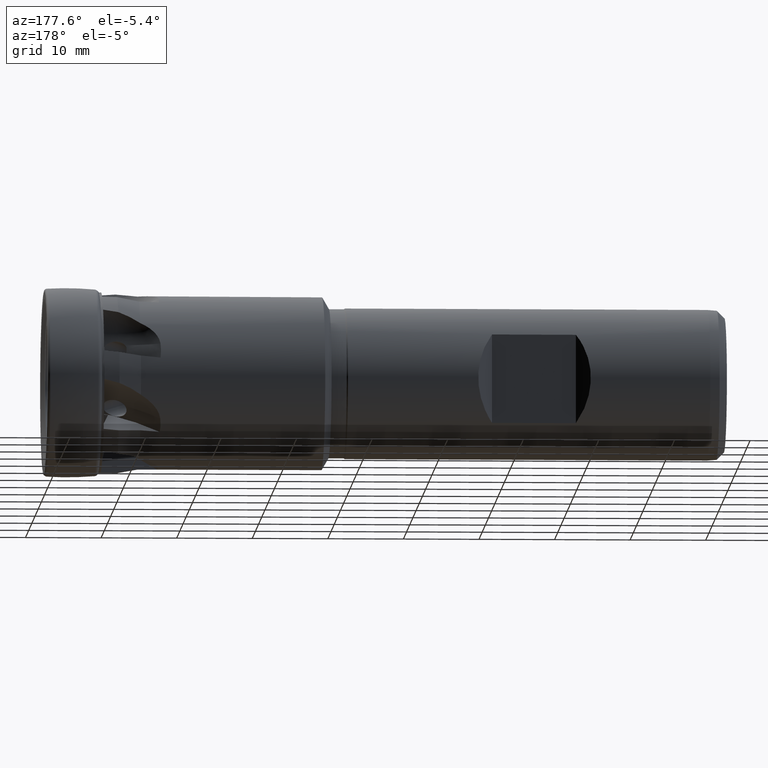
[diagram: clean part render]
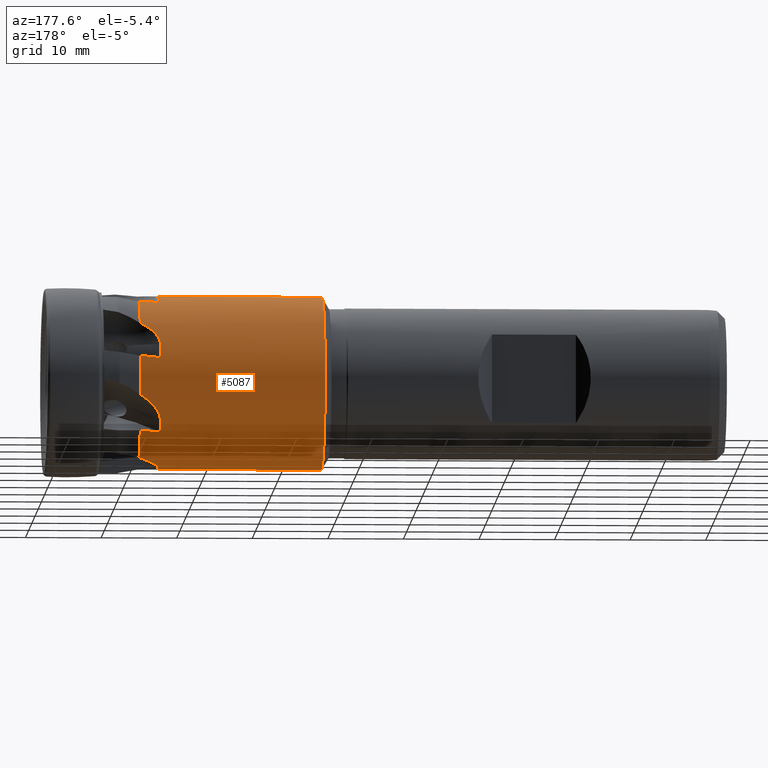
[diagram: same view with one face highlighted and labeled with its STEP entity id]
A machine part, auxiliary view. The second image highlights one B-rep face of the part: STEP entity #5087.
In plain terms, the highlighted cylindrical surface (partial cylindrical patch) has radius 11.47 mm, axis along (1, -0, -0).
Its self-contained STEP definition (entity closure, byte-faithful):
#51 = B_SPLINE_CURVE_WITH_KNOTS ( 'NONE', 3,
 ( #5363, #5362, #5366, #5367 ),
 .UNSPECIFIED., .F., .F.,
 ( 4, 4 ),
 ( 1.525299452287147300E-016, 0.002014762378807072800 ),
 .UNSPECIFIED. ) ;
#61 = B_SPLINE_CURVE_WITH_KNOTS ( 'NONE', 3,
 ( #1699, #1698, #1705, #1706, #1707, #1708, #1709, #1710, #1711, #1712, #1713, #1714 ),
 .UNSPECIFIED., .F., .F.,
 ( 4, 2, 2, 2, 2, 4 ),
 ( 0.0009260210405258540100, 0.001466963678715917600, 0.002007906316905981300, 0.003089791593286110900, 0.004171676869666241000, 0.005253562146046371000 ),
 .UNSPECIFIED. ) ;
#78 = B_SPLINE_CURVE_WITH_KNOTS ( 'NONE', 3,
 ( #5522, #5523, #5558, #5559, #5560, #5561, #5562, #5563, #5564, #5565, #5566, #5567 ),
 .UNSPECIFIED., .F., .F.,
 ( 4, 2, 2, 2, 2, 4 ),
 ( 7.179796305812222700E-005, 0.0006111386188026559300, 0.001150479274547189500, 0.002229160586036259000, 0.003307841897525328100, 0.004386523209014397600 ),
 .UNSPECIFIED. ) ;
#87 = B_SPLINE_CURVE_WITH_KNOTS ( 'NONE', 3,
 ( #629, #607, #636, #637 ),
 .UNSPECIFIED., .F., .F.,
 ( 4, 4 ),
 ( 1.458096739819145900E-016, 0.002014762378807008600 ),
 .UNSPECIFIED. ) ;
#89 = B_SPLINE_CURVE_WITH_KNOTS ( 'NONE', 3,
 ( #1491, #1490, #1499, #1500 ),
 .UNSPECIFIED., .F., .F.,
 ( 4, 4 ),
 ( 1.684826454592430600E-016, 0.002014762378807053700 ),
 .UNSPECIFIED. ) ;
#92 = B_SPLINE_CURVE_WITH_KNOTS ( 'NONE', 3,
 ( #660, #661, #665, #666, #667, #668, #669, #670, #671, #672, #673, #674 ),
 .UNSPECIFIED., .F., .F.,
 ( 4, 2, 2, 2, 2, 4 ),
 ( 0.004748737625441990100, 0.005289378889771572400, 0.005830020154101154600, 0.006911302682760318100, 0.007992585211419482600, 0.009073867740078645300 ),
 .UNSPECIFIED. ) ;
#123 = B_SPLINE_CURVE_WITH_KNOTS ( 'NONE', 3,
 ( #1104, #1093, #1106, #1107 ),
 .UNSPECIFIED., .F., .F.,
 ( 4, 4 ),
 ( 0.0002233537533383877400, 0.002014762378807224100 ),
 .UNSPECIFIED. ) ;
#132 = B_SPLINE_CURVE_WITH_KNOTS ( 'NONE', 3,
 ( #441, #440, #447, #448, #449, #450, #451, #452, #453, #454, #455, #456 ),
 .UNSPECIFIED., .F., .F.,
 ( 4, 2, 2, 2, 2, 4 ),
 ( 0.004097013830496877000, 0.004638313310275285300, 0.005179612790053693600, 0.006262211749610514500, 0.007344810709167334500, 0.008427409668724156200 ),
 .UNSPECIFIED. ) ;
#185 = CARTESIAN_POINT ( 'NONE',  ( -36.24714991585850800, 0.0000000000000000000, -11.47000000000000100 ) ) ;
#189 = CARTESIAN_POINT ( 'NONE',  ( -11.87817552344816400, 11.16888581603877400, -2.610917392084232300 ) ) ;
#203 = CARTESIAN_POINT ( 'NONE',  ( -14.47144687107985900, 5.177429325890082100, 10.23499514291106000 ) ) ;
#235 = CARTESIAN_POINT ( 'NONE',  ( -11.87817552345608800, 1.404669878622014200E-015, 11.47000000000000100 ) ) ;
#236 = CARTESIAN_POINT ( 'NONE',  ( -14.48086448546638600, 9.971840581793486500, -5.667741650013835100 ) ) ;
#251 = CARTESIAN_POINT ( 'NONE',  ( -14.47144687107986400, 11.23011581017205700, 2.333537848444601000 ) ) ;
#271 = CARTESIAN_POINT ( 'NONE',  ( -11.87817552345608800, 4.932761347384321500, 10.35513232603771200 ) ) ;
#272 = CARTESIAN_POINT ( 'NONE',  ( -14.48086448546602700, 3.306696254109600100, 10.98301688440189700 ) ) ;
#294 = CARTESIAN_POINT ( 'NONE',  ( -11.87817552344800000, 9.004983819679530700, 7.104306187609728900 ) ) ;
#322 = CARTESIAN_POINT ( 'NONE',  ( -11.87817552345608800, 8.997864876986859900, -7.113320438127771300 ) ) ;
#323 = CARTESIAN_POINT ( 'NONE',  ( -11.87817552345572700, 4.922388989165868100, -10.36006692253185300 ) ) ;
#341 = CARTESIAN_POINT ( 'NONE',  ( -14.49814103388591500, -6.422939143797270700E-015, -11.47000000000000200 ) ) ;
#369 = CARTESIAN_POINT ( 'NONE',  ( -14.48086448546607000, 10.64855976498518900, 4.262519786644857000 ) ) ;
#370 = CARTESIAN_POINT ( 'NONE',  ( -11.87817552345578800, 0.06014533891227136900, 11.46984230659720600 ) ) ;
#374 = CARTESIAN_POINT ( 'NONE',  ( -14.47144687107965100, 8.826296036779494300, -7.325121041397899500 ) ) ;
#379 = CARTESIAN_POINT ( 'NONE',  ( -14.48086448546602900, 1.786122052033360300, -11.33007802335181300 ) ) ;
#418 = CARTESIAN_POINT ( 'NONE',  ( -11.87817552345608800, 11.17149485271575800, 2.599731285295720200 ) ) ;
#429 = CARTESIAN_POINT ( 'NONE',  ( -36.24714991585850800, 1.404669878622014200E-015, 11.47000000000000100 ) ) ;
#440 = CARTESIAN_POINT ( 'NONE',  ( -14.45797881075714400, 10.06061780156250400, -5.511546760144111300 ) ) ;
#441 = CARTESIAN_POINT ( 'NONE',  ( -14.48086448546638600, 9.971840581793486500, -5.667741650013835100 ) ) ;
#447 = CARTESIAN_POINT ( 'NONE',  ( -14.41666065155592400, 10.14510028923949900, -5.354186258572077900 ) ) ;
#448 = CARTESIAN_POINT ( 'NONE',  ( -14.30468404286510700, 10.30079052221011800, -5.048176402202655000 ) ) ;
#449 = CARTESIAN_POINT ( 'NONE',  ( -14.23334897322893000, 10.37331432054400800, -4.897069590014995200 ) ) ;
#450 = CARTESIAN_POINT ( 'NONE',  ( -13.98360250764364700, 10.57380481437930800, -4.456423902236061900 ) ) ;
#451 = CARTESIAN_POINT ( 'NONE',  ( -13.77465418936403700, 10.68259511544329900, -4.185327022676362100 ) ) ;
#452 = CARTESIAN_POINT ( 'NONE',  ( -13.29959316145820300, 10.86887937164044600, -3.674542405792429200 ) ) ;
#453 = CARTESIAN_POINT ( 'NONE',  ( -13.03463227995078600, 10.94517990710660100, -3.437396912722864500 ) ) ;
#454 = CARTESIAN_POINT ( 'NONE',  ( -12.47800919757808900, 11.07288019715697700, -3.000664072157310800 ) ) ;
#455 = CARTESIAN_POINT ( 'NONE',  ( -12.18413966005993600, 11.12489660706666900, -2.799092802627044700 ) ) ;
#456 = CARTESIAN_POINT ( 'NONE',  ( -11.87817552344816400, 11.16888581603877400, -2.610917392084232300 ) ) ;
#607 = CARTESIAN_POINT ( 'NONE',  ( -14.56127571352149600, 9.256593271642469000, -6.806640765474386800 ) ) ;
#629 = CARTESIAN_POINT ( 'NONE',  ( -14.47144687107965100, 8.826296036779494300, -7.325121041397899500 ) ) ;
#636 = CARTESIAN_POINT ( 'NONE',  ( -14.56679694886848100, 9.638494709950549600, -6.254231313424339700 ) ) ;
#637 = CARTESIAN_POINT ( 'NONE',  ( -14.48086448546638600, 9.971840581793486500, -5.667741650013835100 ) ) ;
#655 = CARTESIAN_POINT ( 'NONE',  ( -11.87817552345608800, 8.997864876986859900, -7.113320438127771300 ) ) ;
#660 = CARTESIAN_POINT ( 'NONE',  ( -14.48086448546602700, 3.306696254109600100, 10.98301688440189700 ) ) ;
#661 = CARTESIAN_POINT ( 'NONE',  ( -14.45777663817513100, 3.133142958026727600, 11.03526919723052300 ) ) ;
#662 = CARTESIAN_POINT ( 'NONE',  ( -12.74265743938333100, 8.941515516368967900, -7.184598533520011500 ) ) ;
#663 = CARTESIAN_POINT ( 'NONE',  ( -13.60712190521760500, 8.884323211391098600, -7.255202057342183200 ) ) ;
#664 = CARTESIAN_POINT ( 'NONE',  ( -14.47144687107965100, 8.826296036779494300, -7.325121041397899500 ) ) ;
#665 = CARTESIAN_POINT ( 'NONE',  ( -14.41681571956803700, 2.962954843350850400, 11.08202897061917500 ) ) ;
#666 = CARTESIAN_POINT ( 'NONE',  ( -14.30468574129484200, 2.629426383830780100, 11.16586693460895900 ) ) ;
#667 = CARTESIAN_POINT ( 'NONE',  ( -14.23269638565194700, 2.464687486272134600, 11.20321633545391500 ) ) ;
#668 = CARTESIAN_POINT ( 'NONE',  ( -13.98377463484627500, 1.992293811229695100, 11.30022247681867000 ) ) ;
#669 = CARTESIAN_POINT ( 'NONE',  ( -13.77457815138903800, 1.702939586684522700, 11.34617609972174200 ) ) ;
#670 = CARTESIAN_POINT ( 'NONE',  ( -13.29610687539728900, 1.160169248775199300, 11.41445235812872200 ) ) ;
#671 = CARTESIAN_POINT ( 'NONE',  ( -13.03354276990389600, 0.9147463743458244000, 11.43572042300895900 ) ) ;
#672 = CARTESIAN_POINT ( 'NONE',  ( -12.47786935019783300, 0.4614166425323975600, 11.46296459056718400 ) ) ;
#673 = CARTESIAN_POINT ( 'NONE',  ( -12.18420979417117100, 0.2534356153789784100, 11.46882873475608900 ) ) ;
#674 = CARTESIAN_POINT ( 'NONE',  ( -11.87817552345578800, 0.06014533891227136900, 11.46984230659720600 ) ) ;
#677 = CARTESIAN_POINT ( 'NONE',  ( -11.87817552345608800, 0.0000000000000000000, 0.0000000000000000000 ) ) ;
#678 = DIRECTION ( 'NONE',  ( 1.000000000000000000, -0.0000000000000000000, -0.0000000000000000000 ) ) ;
#679 = DIRECTION ( 'NONE',  ( 0.0000000000000000000, 0.0000000000000000000, -1.000000000000000000 ) ) ;
#1093 = CARTESIAN_POINT ( 'NONE',  ( -14.56101948120979200, 0.5982484641552088300, -11.47000000000000100 ) ) ;
#1095 = LINE ( 'NONE', #1096, #3616 ) ;
#1096 = CARTESIAN_POINT ( 'NONE',  ( 0.0000000000000000000, 0.0000000000000000000, -11.47000000000000100 ) ) ;
#1097 = DIRECTION ( 'NONE',  ( 1.000000000000000000, -0.0000000000000000000, -0.0000000000000000000 ) ) ;
#1104 = CARTESIAN_POINT ( 'NONE',  ( -14.49814103388591500, -6.422939143797270700E-015, -11.47000000000000200 ) ) ;
#1106 = CARTESIAN_POINT ( 'NONE',  ( -14.55727059556924500, 1.193621493350017800, -11.42348235044695300 ) ) ;
#1107 = CARTESIAN_POINT ( 'NONE',  ( -14.48086448546602900, 1.786122052033360300, -11.33007802335181300 ) ) ;
#1353 = LINE ( 'NONE', #1354, #4269 ) ;
#1354 = CARTESIAN_POINT ( 'NONE',  ( 0.0000000000000000000, 1.404669878622014200E-015, 11.47000000000000100 ) ) ;
#1355 = DIRECTION ( 'NONE',  ( 1.000000000000000000, -0.0000000000000000000, -0.0000000000000000000 ) ) ;
#1411 = CARTESIAN_POINT ( 'NONE',  ( -11.87817552345608800, 0.0000000000000000000, 0.0000000000000000000 ) ) ;
#1412 = DIRECTION ( 'NONE',  ( 1.000000000000000000, -0.0000000000000000000, -0.0000000000000000000 ) ) ;
#1413 = DIRECTION ( 'NONE',  ( 0.0000000000000000000, 0.0000000000000000000, -1.000000000000000000 ) ) ;
#1490 = CARTESIAN_POINT ( 'NONE',  ( -14.56127571352150900, 11.09303754512141500, 2.993224937982659700 ) ) ;
#1491 = CARTESIAN_POINT ( 'NONE',  ( -14.47144687107986400, 11.23011581017205700, 2.333537848444601000 ) ) ;
#1499 = CARTESIAN_POINT ( 'NONE',  ( -14.56679694886848800, 10.89925809639604100, 3.636229165455280700 ) ) ;
#1500 = CARTESIAN_POINT ( 'NONE',  ( -14.48086448546607000, 10.64855976498518900, 4.262519786644857000 ) ) ;
#1698 = CARTESIAN_POINT ( 'NONE',  ( -14.45781163704279700, 1.964888194578507100, -11.30189656258000700 ) ) ;
#1699 = CARTESIAN_POINT ( 'NONE',  ( -14.48086448546602900, 1.786122052033360300, -11.33007802335181300 ) ) ;
#1705 = CARTESIAN_POINT ( 'NONE',  ( -14.41698255449719600, 2.138202932665945100, -11.27025389542750800 ) ) ;
#1706 = CARTESIAN_POINT ( 'NONE',  ( -14.30477637131845400, 2.475462260558835700, -11.20100983149328200 ) ) ;
#1707 = CARTESIAN_POINT ( 'NONE',  ( -14.23268239373809200, 2.640301667767440500, -11.16313182991757100 ) ) ;
#1708 = CARTESIAN_POINT ( 'NONE',  ( -13.98394931357169000, 3.107682508576791400, -11.04565208675447100 ) ) ;
#1709 = CARTESIAN_POINT ( 'NONE',  ( -13.77377910088167400, 3.389616050807149800, -10.96112013077586200 ) ) ;
#1710 = CARTESIAN_POINT ( 'NONE',  ( -13.29529538817890000, 3.908023940796449700, -10.78716832034019300 ) ) ;
#1711 = CARTESIAN_POINT ( 'NONE',  ( -13.03328662768161500, 4.137817872665712200, -10.70004063046772000 ) ) ;
#1712 = CARTESIAN_POINT ( 'NONE',  ( -12.47789456779384500, 4.557843811480285700, -10.52798489888557200 ) ) ;
#1713 = CARTESIAN_POINT ( 'NONE',  ( -12.18427513463507600, 4.747763419435331800, -10.44303694464647100 ) ) ;
#1714 = CARTESIAN_POINT ( 'NONE',  ( -11.87817552345572700, 4.922388989165868100, -10.36006692253185300 ) ) ;
#1908 = CARTESIAN_POINT ( 'NONE',  ( -11.87817552345608800, 0.0000000000000000000, 0.0000000000000000000 ) ) ;
#1909 = DIRECTION ( 'NONE',  ( 1.000000000000000000, -0.0000000000000000000, -0.0000000000000000000 ) ) ;
#1910 = DIRECTION ( 'NONE',  ( 0.0000000000000000000, 0.0000000000000000000, -1.000000000000000000 ) ) ;
#2421 = CYLINDRICAL_SURFACE ( 'NONE', #4653, 11.47000000000000100 ) ;
#2423 = CARTESIAN_POINT ( 'NONE',  ( 0.0000000000000000000, 0.0000000000000000000, 0.0000000000000000000 ) ) ;
#2432 = DIRECTION ( 'NONE',  ( 1.000000000000000000, -0.0000000000000000000, -0.0000000000000000000 ) ) ;
#2433 = FACE_OUTER_BOUND ( 'NONE', #4377, .T. ) ;
#2434 = DIRECTION ( 'NONE',  ( 0.0000000000000000000, 0.0000000000000000000, -1.000000000000000000 ) ) ;
#3426 = EDGE_CURVE ( 'NONE', #3653, #3823, #1095, .T. ) ;
#3429 = EDGE_CURVE ( 'NONE', #3823, #3868, #123, .T. ) ;
#3616 = VECTOR ( 'NONE', #1097, 1000.000000000000000 ) ;
#3653 = VERTEX_POINT ( 'NONE', #185 ) ;
#3657 = VERTEX_POINT ( 'NONE', #189 ) ;
#3675 = VERTEX_POINT ( 'NONE', #203 ) ;
#3710 = VERTEX_POINT ( 'NONE', #235 ) ;
#3711 = VERTEX_POINT ( 'NONE', #236 ) ;
#3729 = VERTEX_POINT ( 'NONE', #251 ) ;
#3749 = VERTEX_POINT ( 'NONE', #271 ) ;
#3750 = VERTEX_POINT ( 'NONE', #272 ) ;
#3772 = VERTEX_POINT ( 'NONE', #294 ) ;
#3801 = VERTEX_POINT ( 'NONE', #322 ) ;
#3802 = VERTEX_POINT ( 'NONE', #323 ) ;
#3823 = VERTEX_POINT ( 'NONE', #341 ) ;
#3852 = VERTEX_POINT ( 'NONE', #369 ) ;
#3853 = VERTEX_POINT ( 'NONE', #370 ) ;
#3861 = VERTEX_POINT ( 'NONE', #374 ) ;
#3868 = VERTEX_POINT ( 'NONE', #379 ) ;
#3911 = VERTEX_POINT ( 'NONE', #418 ) ;
#3922 = VERTEX_POINT ( 'NONE', #429 ) ;
#3934 = EDGE_CURVE ( 'NONE', #3711, #3657, #132, .T. ) ;
#3975 = EDGE_CURVE ( 'NONE', #3861, #3711, #87, .T. ) ;
#3981 = EDGE_CURVE ( 'NONE', #3801, #3861, #4820, .T. ) ;
#3982 = EDGE_CURVE ( 'NONE', #3750, #3853, #92, .T. ) ;
#3983 = EDGE_CURVE ( 'NONE', #3657, #3911, #6109, .T. ) ;
#4036 = EDGE_CURVE ( 'NONE', #3675, #3750, #51, .T. ) ;
#4040 = EDGE_CURVE ( 'NONE', #3772, #3749, #4797, .T. ) ;
#4042 = EDGE_CURVE ( 'NONE', #3749, #3675, #4810, .T. ) ;
#4046 = EDGE_CURVE ( 'NONE', #3653, #3922, #4786, .T. ) ;
#4067 = EDGE_CURVE ( 'NONE', #3852, #3772, #78, .T. ) ;
#4080 = EDGE_CURVE ( 'NONE', #3911, #3729, #4804, .T. ) ;
#4094 = EDGE_CURVE ( 'NONE', #3922, #3710, #1353, .T. ) ;
#4096 = AXIS2_PLACEMENT_3D ( 'NONE', #1411, #1412, #1413 ) ;
#4099 = CIRCLE ( 'NONE', #4096, 11.47000000000000100 ) ;
#4128 = EDGE_CURVE ( 'NONE', #3853, #3710, #4099, .T. ) ;
#4148 = EDGE_CURVE ( 'NONE', #3729, #3852, #89, .T. ) ;
#4191 = EDGE_CURVE ( 'NONE', #3868, #3802, #61, .T. ) ;
#4231 = EDGE_CURVE ( 'NONE', #3802, #3801, #4523, .T. ) ;
#4269 = VECTOR ( 'NONE', #1355, 1000.000000000000000 ) ;
#4295 = ORIENTED_EDGE ( 'NONE', *, *, #4191, .F. ) ;
#4314 = ORIENTED_EDGE ( 'NONE', *, *, #4040, .F. ) ;
#4321 = ORIENTED_EDGE ( 'NONE', *, *, #4148, .F. ) ;
#4328 = ORIENTED_EDGE ( 'NONE', *, *, #4094, .T. ) ;
#4338 = ORIENTED_EDGE ( 'NONE', *, *, #3975, .F. ) ;
#4373 = ORIENTED_EDGE ( 'NONE', *, *, #4080, .F. ) ;
#4376 = ORIENTED_EDGE ( 'NONE', *, *, #4128, .F. ) ;
#4377 = EDGE_LOOP ( 'NONE', ( #4476, #4328, #4376, #4385, #4465, #4532, #4314, #4549, #4321, #4373, #4445, #4423, #4338, #4386, #4428, #4295, #4380, #4583 ) ) ;
#4380 = ORIENTED_EDGE ( 'NONE', *, *, #3429, .F. ) ;
#4385 = ORIENTED_EDGE ( 'NONE', *, *, #3982, .F. ) ;
#4386 = ORIENTED_EDGE ( 'NONE', *, *, #3981, .F. ) ;
#4423 = ORIENTED_EDGE ( 'NONE', *, *, #3934, .F. ) ;
#4428 = ORIENTED_EDGE ( 'NONE', *, *, #4231, .F. ) ;
#4445 = ORIENTED_EDGE ( 'NONE', *, *, #3983, .F. ) ;
#4465 = ORIENTED_EDGE ( 'NONE', *, *, #4036, .F. ) ;
#4476 = ORIENTED_EDGE ( 'NONE', *, *, #4046, .T. ) ;
#4523 = CIRCLE ( 'NONE', #4524, 11.47000000000000100 ) ;
#4524 = AXIS2_PLACEMENT_3D ( 'NONE', #1908, #1909, #1910 ) ;
#4532 = ORIENTED_EDGE ( 'NONE', *, *, #4042, .F. ) ;
#4549 = ORIENTED_EDGE ( 'NONE', *, *, #4067, .F. ) ;
#4583 = ORIENTED_EDGE ( 'NONE', *, *, #3426, .F. ) ;
#4653 = AXIS2_PLACEMENT_3D ( 'NONE', #2423, #2432, #2434 ) ;
#4785 = AXIS2_PLACEMENT_3D ( 'NONE', #5438, #5439, #5440 ) ;
#4786 = CIRCLE ( 'NONE', #4785, 11.47000000000000100 ) ;
#4797 = CIRCLE ( 'NONE', #4800, 11.47000000000000100 ) ;
#4800 = AXIS2_PLACEMENT_3D ( 'NONE', #5391, #5392, #5393 ) ;
#4804 =( BOUNDED_CURVE ( )  B_SPLINE_CURVE ( 3, ( #5678, #5684, #5685, #5686 ),
 .UNSPECIFIED., .F., .T. ) 
 B_SPLINE_CURVE_WITH_KNOTS ( ( 4, 4 ),
 ( 1.566554018874448000, 1.590318462693872700 ),
 .UNSPECIFIED. ) 
 CURVE ( )  GEOMETRIC_REPRESENTATION_ITEM ( )  RATIONAL_B_SPLINE_CURVE ( ( 1.000000000000000000, 0.9999529381545442200, 0.9999529381545442200, 1.000000000000000000 ) ) 
 REPRESENTATION_ITEM ( '' )  );
#4810 =( BOUNDED_CURVE ( )  B_SPLINE_CURVE ( 3, ( #5389, #5397, #5398, #5399 ),
 .UNSPECIFIED., .F., .T. ) 
 B_SPLINE_CURVE_WITH_KNOTS ( ( 4, 4 ),
 ( 1.566554018874448000, 1.590318462693872700 ),
 .UNSPECIFIED. ) 
 CURVE ( )  GEOMETRIC_REPRESENTATION_ITEM ( )  RATIONAL_B_SPLINE_CURVE ( ( 1.000000000000000000, 0.9999529381545442200, 0.9999529381545442200, 1.000000000000000000 ) ) 
 REPRESENTATION_ITEM ( '' )  );
#4820 =( BOUNDED_CURVE ( )  B_SPLINE_CURVE ( 3, ( #655, #662, #663, #664 ),
 .UNSPECIFIED., .F., .T. ) 
 B_SPLINE_CURVE_WITH_KNOTS ( ( 4, 4 ),
 ( 1.566554018874448000, 1.590318462693870900 ),
 .UNSPECIFIED. ) 
 CURVE ( )  GEOMETRIC_REPRESENTATION_ITEM ( )  RATIONAL_B_SPLINE_CURVE ( ( 1.000000000000000000, 0.9999529381545442200, 0.9999529381545442200, 1.000000000000000000 ) ) 
 REPRESENTATION_ITEM ( '' )  );
#5087 = ADVANCED_FACE ( 'NONE', ( #2433 ), #2421, .T. ) ;
#5146 = AXIS2_PLACEMENT_3D ( 'NONE', #677, #678, #679 ) ;
#5362 = CARTESIAN_POINT ( 'NONE',  ( -14.56127571352160100, 4.576198290395983500, 10.53913121247728300 ) ) ;
#5363 = CARTESIAN_POINT ( 'NONE',  ( -14.47144687107985900, 5.177429325890082100, 10.23499514291106000 ) ) ;
#5366 = CARTESIAN_POINT ( 'NONE',  ( -14.56679694886849100, 3.952657831907763400, 10.78853491718965800 ) ) ;
#5367 = CARTESIAN_POINT ( 'NONE',  ( -14.48086448546602700, 3.306696254109600100, 10.98301688440189700 ) ) ;
#5389 = CARTESIAN_POINT ( 'NONE',  ( -11.87817552345608800, 4.932761347384321500, 10.35513232603771200 ) ) ;
#5391 = CARTESIAN_POINT ( 'NONE',  ( -11.87817552345608800, 0.0000000000000000000, 0.0000000000000000000 ) ) ;
#5392 = DIRECTION ( 'NONE',  ( 1.000000000000000000, -0.0000000000000000000, -0.0000000000000000000 ) ) ;
#5393 = DIRECTION ( 'NONE',  ( 0.0000000000000000000, 0.0000000000000000000, -1.000000000000000000 ) ) ;
#5397 = CARTESIAN_POINT ( 'NONE',  ( -12.74265743938340700, 5.014791264461917000, 10.31605662989503500 ) ) ;
#5398 = CARTESIAN_POINT ( 'NONE',  ( -13.60712190521774500, 5.096351095653342400, 10.27600901747161000 ) ) ;
#5399 = CARTESIAN_POINT ( 'NONE',  ( -14.47144687107985900, 5.177429325890082100, 10.23499514291106000 ) ) ;
#5438 = CARTESIAN_POINT ( 'NONE',  ( -36.24714991585850800, 0.0000000000000000000, 0.0000000000000000000 ) ) ;
#5439 = DIRECTION ( 'NONE',  ( 1.000000000000000000, -0.0000000000000000000, -0.0000000000000000000 ) ) ;
#5440 = DIRECTION ( 'NONE',  ( 0.0000000000000000000, 0.0000000000000000000, -1.000000000000000000 ) ) ;
#5522 = CARTESIAN_POINT ( 'NONE',  ( -14.48086448546607000, 10.64855976498518900, 4.262519786644857000 ) ) ;
#5523 = CARTESIAN_POINT ( 'NONE',  ( -14.45784860223945100, 10.58141350509207300, 4.430263515062771200 ) ) ;
#5558 = CARTESIAN_POINT ( 'NONE',  ( -14.41718485873876800, 10.51229314573983100, 4.591497958100621400 ) ) ;
#5559 = CARTESIAN_POINT ( 'NONE',  ( -14.30596280384206900, 10.37069816090857800, 4.902935889499093300 ) ) ;
#5560 = CARTESIAN_POINT ( 'NONE',  ( -14.23478471032944800, 10.29772602321480200, 5.054091442767263400 ) ) ;
#5561 = CARTESIAN_POINT ( 'NONE',  ( -13.98529612423775800, 10.07807341136339300, 5.486140953289862800 ) ) ;
#5562 = CARTESIAN_POINT ( 'NONE',  ( -13.77631966313038000, 9.933785388229543000, 5.740641003321353100 ) ) ;
#5563 = CARTESIAN_POINT ( 'NONE',  ( -13.30084505444117600, 9.650172192708591700, 6.205580385386284100 ) ) ;
#5564 = CARTESIAN_POINT ( 'NONE',  ( -13.03572546793772200, 9.512214620138760100, 6.413310521885908800 ) ) ;
#5565 = CARTESIAN_POINT ( 'NONE',  ( -12.47863173497664100, 9.250107224672090600, 6.785889415675976400 ) ) ;
#5566 = CARTESIAN_POINT ( 'NONE',  ( -12.18447237143951200, 9.124808614969030200, 6.952423609032431200 ) ) ;
#5567 = CARTESIAN_POINT ( 'NONE',  ( -11.87817552344800000, 9.004983819679530700, 7.104306187609728900 ) ) ;
#5678 = CARTESIAN_POINT ( 'NONE',  ( -11.87817552345608800, 11.17149485271575800, 2.599731285295720200 ) ) ;
#5684 = CARTESIAN_POINT ( 'NONE',  ( -12.74265743938340700, 11.19208906001725600, 2.511234415574724800 ) ) ;
#5685 = CARTESIAN_POINT ( 'NONE',  ( -13.60712190521774500, 11.21163029881611600, 2.422499093909693100 ) ) ;
#5686 = CARTESIAN_POINT ( 'NONE',  ( -14.47144687107986400, 11.23011581017205700, 2.333537848444601000 ) ) ;
#6109 = CIRCLE ( 'NONE', #5146, 11.47000000000000100 ) ;